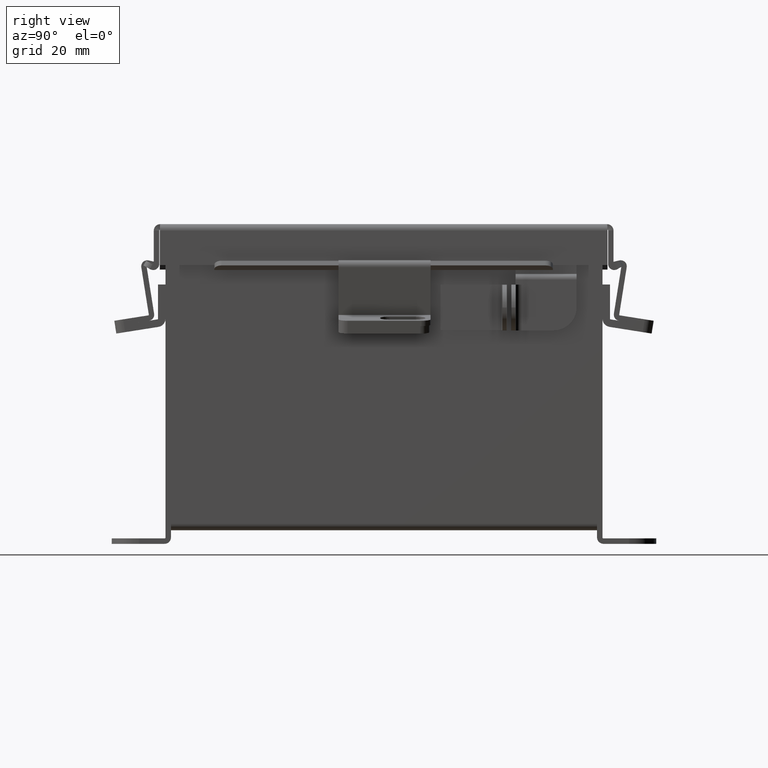
[diagram: clean part render]
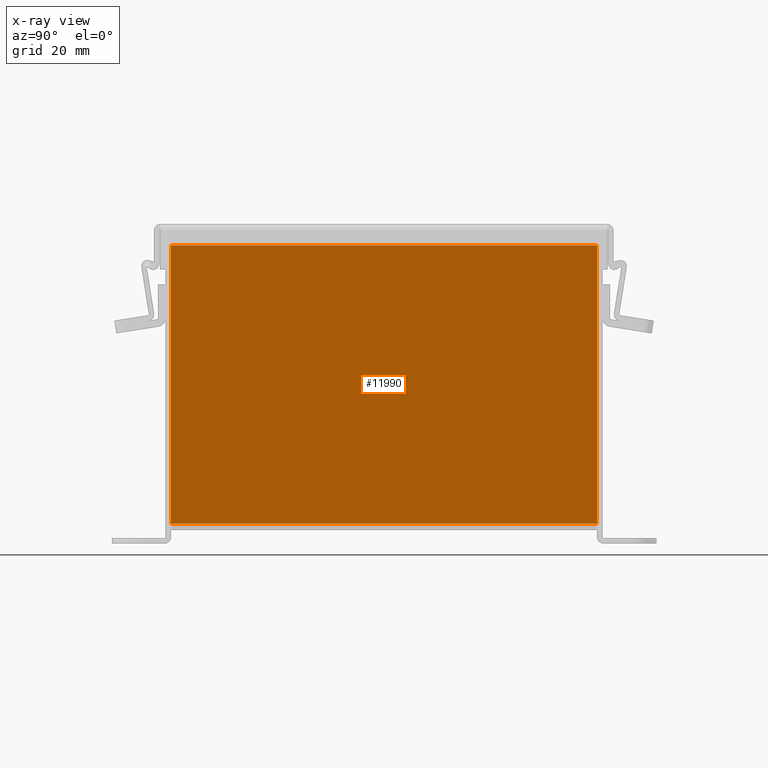
[diagram: x-ray — body ghosted, one internal face saturated and labeled with its STEP entity id]
A machine part, right view, then the same camera in x-ray: the body is ghosted and one INTERNAL B-rep face — a face not visible from any outside direction — is saturated and labeled: STEP entity #11990.
In plain terms, the highlighted planar face has unit normal (-1, 0, 0).
Its self-contained STEP definition (entity closure, byte-faithful):
#88 = DIRECTION ( 'NONE',  ( -1.000000000000000000, 0.0000000000000000000, 3.476355676765930200E-015 ) ) ;
#124 = ORIENTED_EDGE ( 'NONE', *, *, #13500, .F. ) ;
#289 = EDGE_LOOP ( 'NONE', ( #5630, #7634, #3860, #124 ) ) ;
#862 = CARTESIAN_POINT ( 'NONE',  ( 1.925300000000012900, 2.925299999999998200, 3.850600000000000000 ) ) ;
#1092 = VECTOR ( 'NONE', #5320, 39.37007874015748100 ) ;
#1364 = VECTOR ( 'NONE', #12452, 39.37007874015748100 ) ;
#2023 = VERTEX_POINT ( 'NONE', #13659 ) ;
#2376 = VERTEX_POINT ( 'NONE', #13122 ) ;
#2746 = LINE ( 'NONE', #3709, #1364 ) ;
#3009 = CARTESIAN_POINT ( 'NONE',  ( 1.925300000000013600, -2.925300000000000500, 3.837599999999999700 ) ) ;
#3338 = VECTOR ( 'NONE', #7581, 39.37007874015748100 ) ;
#3709 = CARTESIAN_POINT ( 'NONE',  ( 1.925299999999999600, -2.925300000000000500, 0.0000000000000000000 ) ) ;
#3860 = ORIENTED_EDGE ( 'NONE', *, *, #13805, .F. ) ;
#4022 = LINE ( 'NONE', #862, #1092 ) ;
#4807 = DIRECTION ( 'NONE',  ( 0.0000000000000000000, 1.000000000000000000, 0.0000000000000000000 ) ) ;
#5159 = CARTESIAN_POINT ( 'NONE',  ( 1.925299999999999600, 2.925299999999999100, 0.01299999999999984300 ) ) ;
#5320 = DIRECTION ( 'NONE',  ( 3.476355676765930200E-015, -2.837841368788514100E-016, 1.000000000000000000 ) ) ;
#5372 = CARTESIAN_POINT ( 'NONE',  ( 1.925300000000013600, 2.925299999999998200, 3.837599999999999700 ) ) ;
#5607 = VECTOR ( 'NONE', #4807, 39.37007874015748100 ) ;
#5630 = ORIENTED_EDGE ( 'NONE', *, *, #12103, .F. ) ;
#5725 = AXIS2_PLACEMENT_3D ( 'NONE', #6672, #88, #7776 ) ;
#6672 = CARTESIAN_POINT ( 'NONE',  ( 1.925299999999999600, 0.0000000000000000000, -6.949138333883469400E-015 ) ) ;
#6927 = LINE ( 'NONE', #5372, #3338 ) ;
#7581 = DIRECTION ( 'NONE',  ( -0.0000000000000000000, -1.000000000000000000, -0.0000000000000000000 ) ) ;
#7634 = ORIENTED_EDGE ( 'NONE', *, *, #13856, .F. ) ;
#7776 = DIRECTION ( 'NONE',  ( 3.476355676765930200E-015, 0.0000000000000000000, 1.000000000000000000 ) ) ;
#8534 = LINE ( 'NONE', #11377, #5607 ) ;
#8587 = FACE_OUTER_BOUND ( 'NONE', #289, .T. ) ;
#8849 = PLANE ( 'NONE',  #5725 ) ;
#10815 = VERTEX_POINT ( 'NONE', #5159 ) ;
#10831 = VERTEX_POINT ( 'NONE', #3009 ) ;
#11377 = CARTESIAN_POINT ( 'NONE',  ( 1.925299999999999600, -2.925300000000000500, 0.01299999999999984300 ) ) ;
#11990 = ADVANCED_FACE ( 'NONE', ( #8587 ), #8849, .T. ) ;
#12103 = EDGE_CURVE ( 'NONE', #10831, #2376, #2746, .T. ) ;
#12452 = DIRECTION ( 'NONE',  ( -3.476355676765930200E-015, -0.0000000000000000000, -1.000000000000000000 ) ) ;
#13122 = CARTESIAN_POINT ( 'NONE',  ( 1.925299999999999600, -2.925300000000000500, 0.01299999999999984300 ) ) ;
#13500 = EDGE_CURVE ( 'NONE', #2376, #10815, #8534, .T. ) ;
#13659 = CARTESIAN_POINT ( 'NONE',  ( 1.925300000000012900, 2.925299999999998200, 3.837599999999999700 ) ) ;
#13805 = EDGE_CURVE ( 'NONE', #10815, #2023, #4022, .T. ) ;
#13856 = EDGE_CURVE ( 'NONE', #2023, #10831, #6927, .T. ) ;